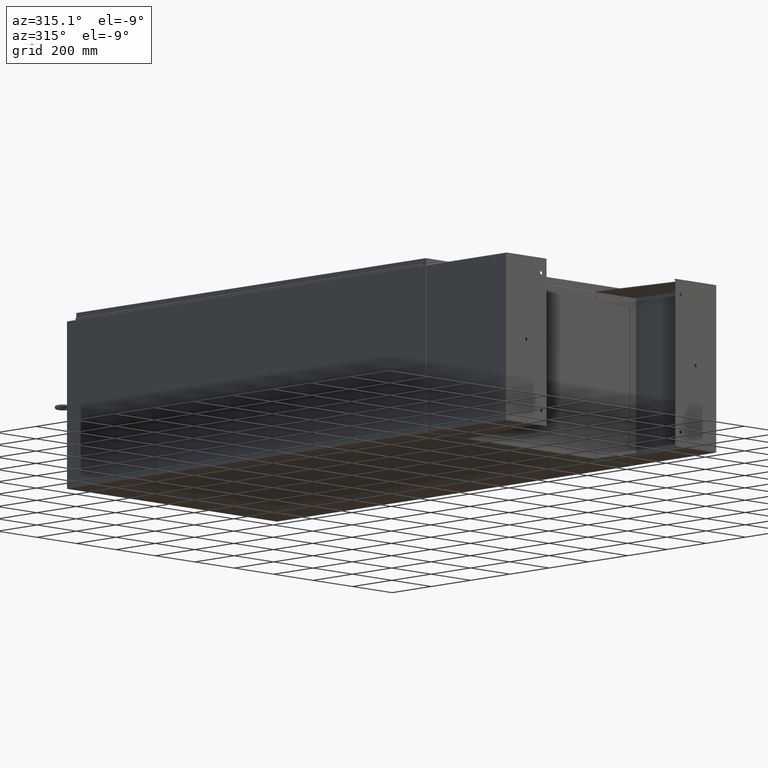
[diagram: clean part render]
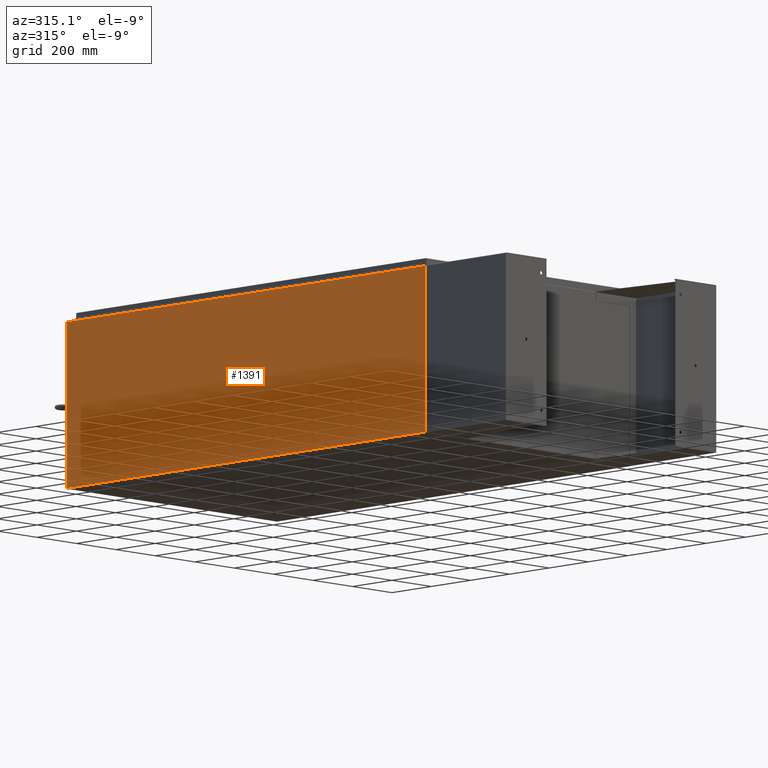
[diagram: same view with one face highlighted and labeled with its STEP entity id]
A machine part, auxiliary view. The second image highlights one B-rep face of the part: STEP entity #1391.
In plain terms, the highlighted planar face has unit normal (1, 0, 0).
Its self-contained STEP definition (entity closure, byte-faithful):
#1391 = ADVANCED_FACE ( 'NONE', ( #35435 ), #34347, .F. ) ;
#1674 = VERTEX_POINT ( 'NONE', #64094 ) ;
#4592 = EDGE_CURVE ( 'NONE', #47550, #60001, #61500, .T. ) ;
#4720 = DIRECTION ( 'NONE',  ( 3.653836557838624500E-015, -1.111386802026270500E-032, -1.000000000000000000 ) ) ;
#4878 = AXIS2_PLACEMENT_3D ( 'NONE', #20232, #34108, #24775 ) ;
#7653 = VECTOR ( 'NONE', #4720, 39.37007874015748100 ) ;
#11017 = ORIENTED_EDGE ( 'NONE', *, *, #4592, .T. ) ;
#16398 = CARTESIAN_POINT ( 'NONE',  ( -21.00000000000008200, -35.92530000000000000, 23.83760000000000200 ) ) ;
#17490 = CARTESIAN_POINT ( 'NONE',  ( -20.99999999999999600, 35.92530000000000000, 0.01299999999999764400 ) ) ;
#17511 = CARTESIAN_POINT ( 'NONE',  ( -20.99999999999999600, -35.92530000000000000, 0.01299999999999764400 ) ) ;
#19470 = EDGE_CURVE ( 'NONE', #39243, #1674, #67536, .T. ) ;
#20232 = CARTESIAN_POINT ( 'NONE',  ( -20.99999999999999600, 0.0000000000000000000, -7.699138137062267400E-014 ) ) ;
#22911 = ORIENTED_EDGE ( 'NONE', *, *, #32264, .T. ) ;
#24775 = DIRECTION ( 'NONE',  ( 3.653836557838624500E-015, 0.0000000000000000000, -1.000000000000000000 ) ) ;
#27972 = CARTESIAN_POINT ( 'NONE',  ( -20.99999999999999600, -35.92529999999999300, -7.699138137062267400E-014 ) ) ;
#32264 = EDGE_CURVE ( 'NONE', #39243, #47550, #50847, .T. ) ;
#32303 = VECTOR ( 'NONE', #48367, 39.37007874015748100 ) ;
#34108 = DIRECTION ( 'NONE',  ( 1.000000000000000000, 7.896878187994143300E-046, 3.653836557838624500E-015 ) ) ;
#34347 = PLANE ( 'NONE',  #4878 ) ;
#35435 = FACE_OUTER_BOUND ( 'NONE', #36820, .T. ) ;
#36708 = LINE ( 'NONE', #53873, #7653 ) ;
#36820 = EDGE_LOOP ( 'NONE', ( #11017, #61787, #50710, #22911 ) ) ;
#37305 = DIRECTION ( 'NONE',  ( -7.896878187994143300E-046, 1.000000000000000000, -2.932526202589318300E-060 ) ) ;
#38203 = VECTOR ( 'NONE', #37305, 39.37007874015748100 ) ;
#39243 = VERTEX_POINT ( 'NONE', #17511 ) ;
#44539 = DIRECTION ( 'NONE',  ( -3.653836557838624500E-015, 0.0000000000000000000, 1.000000000000000000 ) ) ;
#47550 = VERTEX_POINT ( 'NONE', #16398 ) ;
#48367 = DIRECTION ( 'NONE',  ( 0.0000000000000000000, 1.000000000000000000, 0.0000000000000000000 ) ) ;
#49141 = VECTOR ( 'NONE', #44539, 39.37007874015748100 ) ;
#50710 = ORIENTED_EDGE ( 'NONE', *, *, #19470, .F. ) ;
#50847 = LINE ( 'NONE', #27972, #49141 ) ;
#53873 = CARTESIAN_POINT ( 'NONE',  ( -20.99999999999999600, 35.92530000000000000, -7.699138137062267400E-014 ) ) ;
#54292 = EDGE_CURVE ( 'NONE', #60001, #1674, #36708, .T. ) ;
#59095 = CARTESIAN_POINT ( 'NONE',  ( -21.00000000000008200, -35.92530000000000000, 23.83760000000000200 ) ) ;
#60001 = VERTEX_POINT ( 'NONE', #60567 ) ;
#60567 = CARTESIAN_POINT ( 'NONE',  ( -21.00000000000008200, 35.92530000000000000, 23.83760000000000200 ) ) ;
#61500 = LINE ( 'NONE', #59095, #32303 ) ;
#61787 = ORIENTED_EDGE ( 'NONE', *, *, #54292, .T. ) ;
#64094 = CARTESIAN_POINT ( 'NONE',  ( -20.99999999999999600, 35.92530000000000000, 0.01299999999999765100 ) ) ;
#67536 = LINE ( 'NONE', #17490, #38203 ) ;